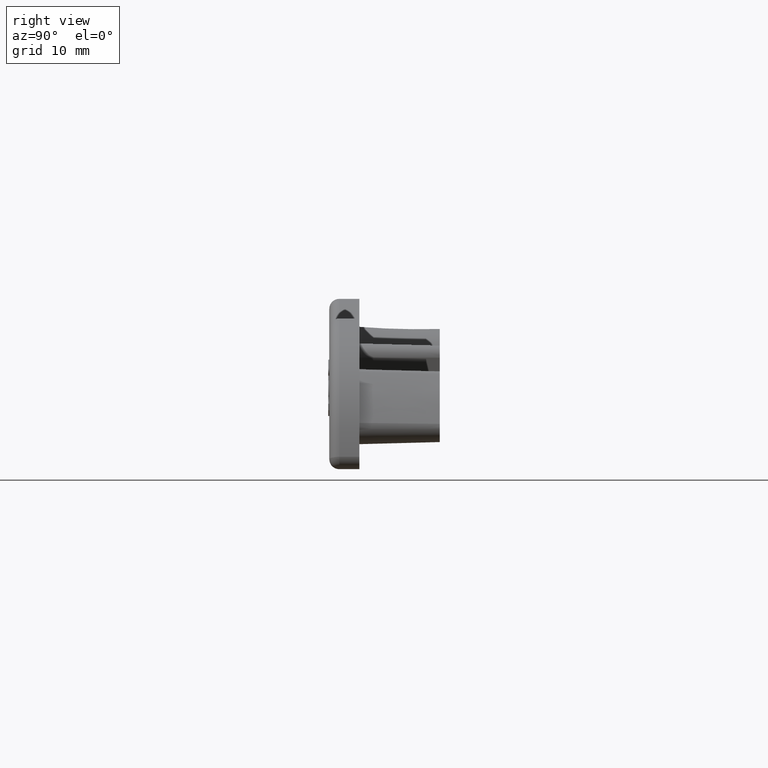
[diagram: clean part render]
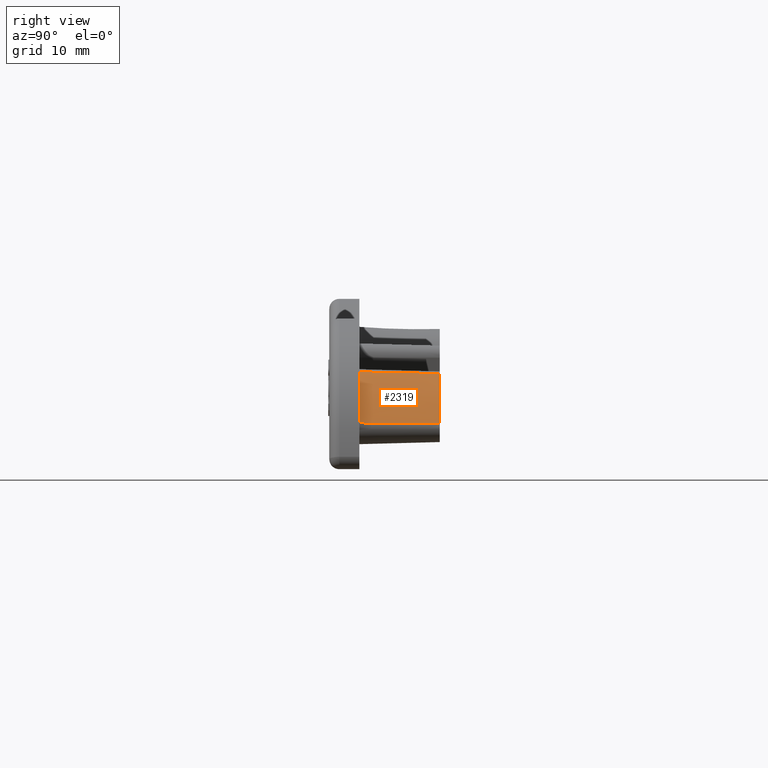
[diagram: same view with one face highlighted and labeled with its STEP entity id]
A machine part, right view. The second image highlights one B-rep face of the part: STEP entity #2319.
In plain terms, the highlighted conical surface has half-angle 1.5 deg.
Its self-contained STEP definition (entity closure, byte-faithful):
#18=CONICAL_SURFACE('',#2463,15.5651184842879,0.0261799387799149);
#66=CIRCLE('',#2464,15.7746058568414);
#67=CIRCLE('',#2465,15.5651184842879);
#327=FACE_OUTER_BOUND('',#477,.T.);
#477=EDGE_LOOP('',(#2011,#2012,#2013,#2014));
#681=LINE('',#4447,#892);
#682=LINE('',#4453,#893);
#892=VECTOR('',#2877,10.);
#893=VECTOR('',#2884,10.);
#1114=VERTEX_POINT('',#4443);
#1115=VERTEX_POINT('',#4445);
#1116=VERTEX_POINT('',#4449);
#1117=VERTEX_POINT('',#4451);
#1426=EDGE_CURVE('',#1114,#1115,#681,.T.);
#1427=EDGE_CURVE('',#1114,#1116,#66,.T.);
#1428=EDGE_CURVE('',#1117,#1115,#67,.T.);
#1429=EDGE_CURVE('',#1116,#1117,#682,.T.);
#2011=ORIENTED_EDGE('',*,*,#1427,.F.);
#2012=ORIENTED_EDGE('',*,*,#1426,.T.);
#2013=ORIENTED_EDGE('',*,*,#1428,.F.);
#2014=ORIENTED_EDGE('',*,*,#1429,.F.);
#2319=ADVANCED_FACE('',(#327),#18,.T.);
#2463=AXIS2_PLACEMENT_3D('',#4448,#2878,#2879);
#2464=AXIS2_PLACEMENT_3D('',#4450,#2880,#2881);
#2465=AXIS2_PLACEMENT_3D('',#4452,#2882,#2883);
#2877=DIRECTION('',(-0.0229239684377567,0.999657324975557,-0.012638207696418));
#2878=DIRECTION('center_axis',(0.,-1.,0.));
#2879=DIRECTION('ref_axis',(0.593798192903563,0.,0.804614010631473));
#2880=DIRECTION('center_axis',(0.,-1.,0.));
#2881=DIRECTION('ref_axis',(0.593798192903563,0.,0.804614010631473));
#2882=DIRECTION('center_axis',(0.,1.,0.));
#2883=DIRECTION('ref_axis',(0.593798192903563,0.,0.804614010631473));
#2884=DIRECTION('',(-0.0155438246009451,0.999657324975557,-0.0210623393640905));
#4443=CARTESIAN_POINT('',(58.2916017199296,1.5,-4.38403412028244));
#4445=CARTESIAN_POINT('',(58.1081471071136,9.5,-4.48517444011536));
#4447=CARTESIAN_POINT('',(58.2915388546157,1.50274140019554,-4.38406877854401));
#4448=CARTESIAN_POINT('Origin',(44.4772883581417,9.5,-12.));
#4449=CARTESIAN_POINT('',(53.8442208097001,1.5,0.692468884603846));
#4450=CARTESIAN_POINT('Origin',(44.4772883581417,1.5,-12.));
#4451=CARTESIAN_POINT('',(53.7198275864417,9.5,0.523912409596929));
#4452=CARTESIAN_POINT('Origin',(44.4772883581417,9.5,-12.));
#4453=CARTESIAN_POINT('',(53.8441781832493,1.50274140019554,0.692411124509653));